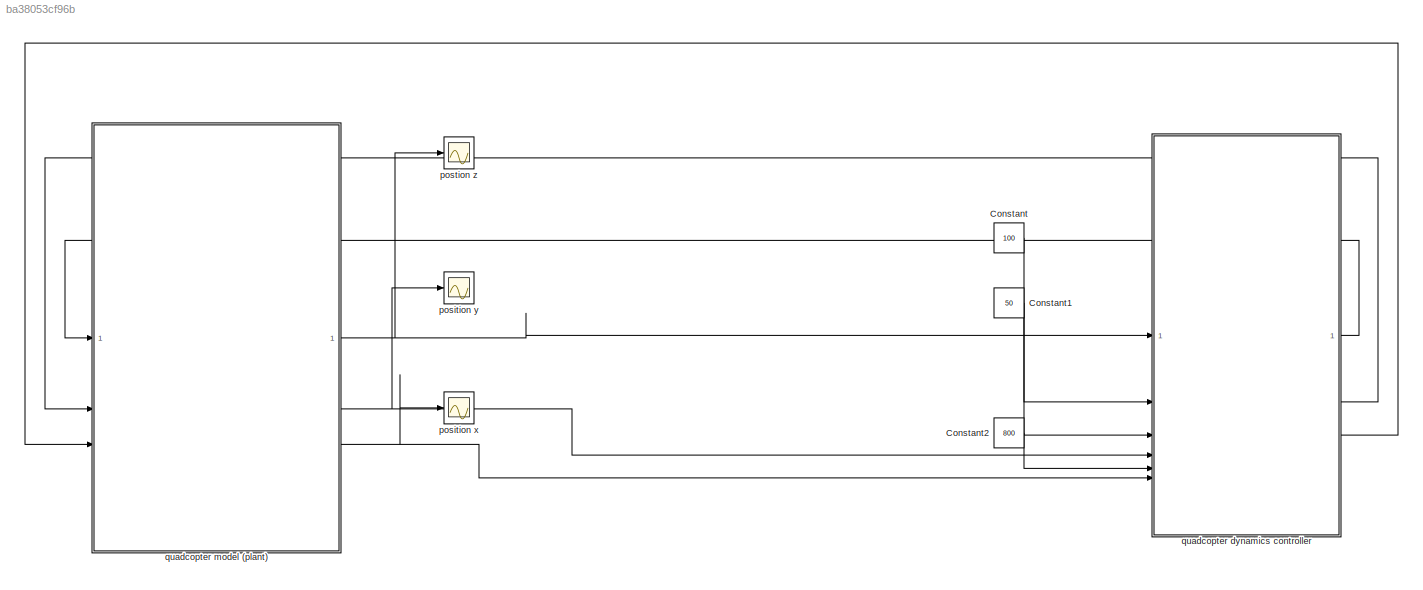
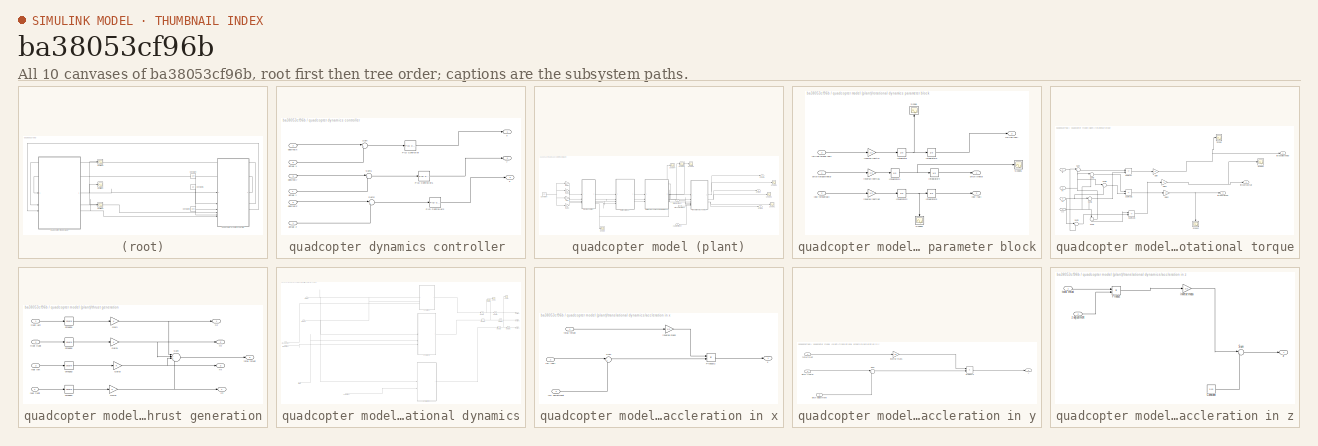
[diagram: thumbnail index - all 10 canvases of the model, root first then tree order]
MODEL slx_ba38053cf96b
KIND model
CONFIG AbsTol = auto
CONFIG EnableMultiTasking = off
CONFIG FixedStep = auto
CONFIG MaxStep = 0.2
CONFIG MinStep = auto
CONFIG RelTol = 1e-3
CONFIG SampleTimeConstraint = Unconstrained
CONFIG SolverName = odeN
CONFIG StartTime = 0.0
CONFIG StopTime = 20
BLOCK [Constant] Constant
  Value = 100
BLOCK [Constant] Constant1
  Value = 50
BLOCK [Constant] Constant2
  Value = 800
BLOCK [Scope] position x
  Floating = off
  NumInputPorts = 1
  ScopeSpecificationString = Simulink.scopes.TimeScopeBlockCfg('CurrentConfiguration', extmgr.ConfigurationSet(extmgr.Configuration('Core','General UI',true),extmgr.Configuration('Core','Source UI',true),extmgr.Configuration('Sources','WiredSimulink',true,'DataLoggingVariableName','ScopeData2'),extmgr.Configuration('Visuals','Time Domain',true,'SerializedDisplays',{struct('MinYLimReal','-14.24882','MaxYLimReal','128.23939','Y...<+1395ch>
BLOCK [Scope] position y
  Floating = off
  NumInputPorts = 1
  ScopeSpecificationString = Simulink.scopes.TimeScopeBlockCfg('CurrentConfiguration', extmgr.ConfigurationSet(extmgr.Configuration('Core','General UI',true),extmgr.Configuration('Core','Source UI',true),extmgr.Configuration('Sources','WiredSimulink',true,'DataLoggingVariableName','ScopeData1'),extmgr.Configuration('Visuals','Time Domain',true,'SerializedDisplays',{struct('MinYLimReal','-7.12441','MaxYLimReal','64.11969','YLa...<+1389ch>
BLOCK [Scope] postion z
  Floating = off
  NumInputPorts = 1
  ScopeSpecificationString = Simulink.scopes.TimeScopeBlockCfg('CurrentConfiguration', extmgr.ConfigurationSet(extmgr.Configuration('Core','General UI',true),extmgr.Configuration('Core','Source UI',true),extmgr.Configuration('Sources','WiredSimulink',true,'DataLoggingVariableName','ScopeData3'),extmgr.Configuration('Visuals','Time Domain',true,'SerializedDisplays',{struct('MinYLimReal','-110.8783','MaxYLimReal','997.9047','YL...<+1393ch>
BLOCK [SubSystem] quadcopter dynamics controller 
BLOCK [Reference] quadcopter dynamics controller /PID Controller  REF=slpidlib/PID Controller
  LibrarySourceBlock = simulink/Continuous/PID Controller
  SourceBlock = slpidlib/PID Controller
  SourceType = PID 1dof
BLOCK [Reference] quadcopter dynamics controller /PID Controller1  REF=slpidlib/PID Controller
  LibrarySourceBlock = simulink/Continuous/PID Controller
  SourceBlock = slpidlib/PID Controller
  SourceType = PID 1dof
BLOCK [Reference] quadcopter dynamics controller /PID Controller2  REF=slpidlib/PID Controller
  LibrarySourceBlock = simulink/Continuous/PID Controller
  SourceBlock = slpidlib/PID Controller
  SourceType = PID 1dof
BLOCK [Sum] quadcopter dynamics controller /Sum
  Inputs = |+-
BLOCK [Sum] quadcopter dynamics controller /Sum1
  Inputs = |+-
BLOCK [Sum] quadcopter dynamics controller /Sum2
  Inputs = |+-
BLOCK [Inport] quadcopter dynamics controller /actual x
  Port = 6
BLOCK [Inport] quadcopter dynamics controller /actual y
  Port = 4
BLOCK [Inport] quadcopter dynamics controller /actual z
BLOCK [Inport] quadcopter dynamics controller /desired x
  Port = 2
BLOCK [Inport] quadcopter dynamics controller /desired y
  Port = 3
BLOCK [Inport] quadcopter dynamics controller /desired z
  Port = 5
BLOCK [Outport] quadcopter dynamics controller /x
BLOCK [Outport] quadcopter dynamics controller /y
  Port = 2
BLOCK [Outport] quadcopter dynamics controller /z
  Port = 3
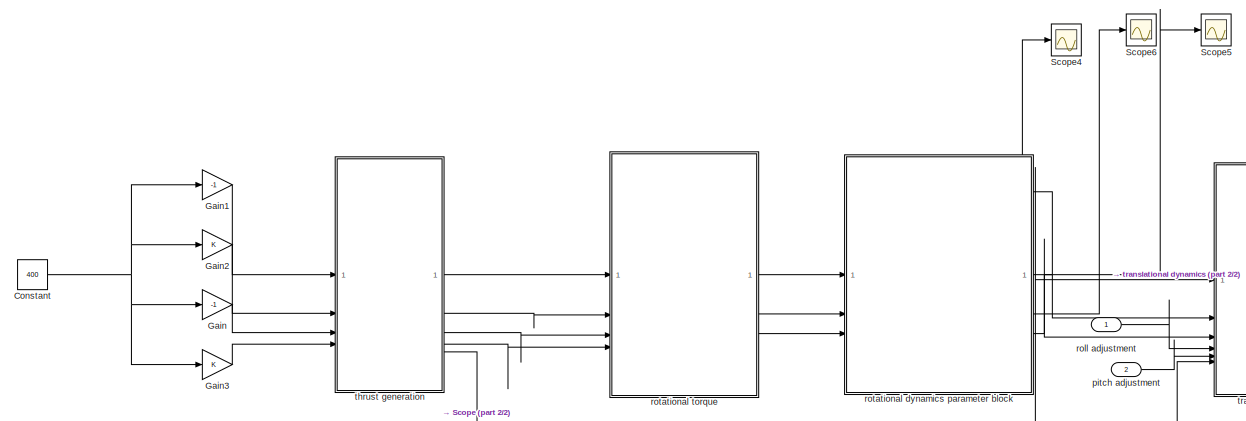
[diagram: quadcopter model (plant) - part 1/2, middle left region]
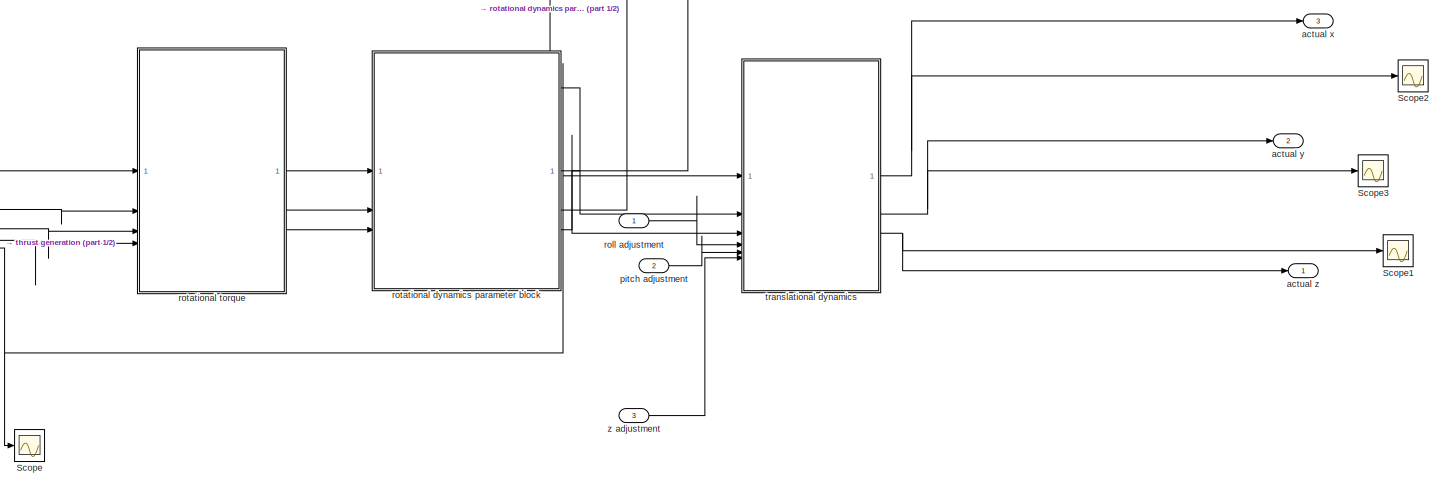
[diagram: quadcopter model (plant) - part 2/2, most of the canvas]
BLOCK [SubSystem] quadcopter model (plant)
BLOCK [Constant] quadcopter model (plant)/Constant
  Value = 400
BLOCK [Gain] quadcopter model (plant)/Gain
  Gain = -1
BLOCK [Gain] quadcopter model (plant)/Gain1
  Gain = -1
BLOCK [Gain] quadcopter model (plant)/Gain2
BLOCK [Gain] quadcopter model (plant)/Gain3
BLOCK [Scope] quadcopter model (plant)/Scope
  Floating = off
  NumInputPorts = 1
  ScopeSpecificationString = Simulink.scopes.TimeScopeBlockCfg('CurrentConfiguration', extmgr.ConfigurationSet(extmgr.Configuration('Core','General UI',true),extmgr.Configuration('Core','Source UI',true),extmgr.Configuration('Sources','WiredSimulink',true,'DataLoggingVariableName','ScopeData7'),extmgr.Configuration('Visuals','Time Domain',true),extmgr.Configuration('Tools','Plot Navigation',true),extmgr.Configuration('Tools',...<+40ch>
BLOCK [Scope] quadcopter model (plant)/Scope1
  Floating = off
  NumInputPorts = 1
  ScopeSpecificationString = Simulink.scopes.TimeScopeBlockCfg('CurrentConfiguration', extmgr.ConfigurationSet(extmgr.Configuration('Core','General UI',true),extmgr.Configuration('Core','Source UI',true),extmgr.Configuration('Sources','WiredSimulink',true,'DataLoggingVariableName','ScopeData1'),extmgr.Configuration('Visuals','Time Domain',true,'SerializedDisplays',{struct('MinYLimReal','-110.8783','MaxYLimReal','997.9047','YL...<+1410ch>
BLOCK [Scope] quadcopter model (plant)/Scope2
  Floating = off
  NumInputPorts = 1
  ScopeSpecificationString = Simulink.scopes.TimeScopeBlockCfg('CurrentConfiguration', extmgr.ConfigurationSet(extmgr.Configuration('Core','General UI',true),extmgr.Configuration('Core','Source UI',true),extmgr.Configuration('Sources','WiredSimulink',true,'DataLoggingVariableName','ScopeData2'),extmgr.Configuration('Visuals','Time Domain',true,'SerializedDisplays',{struct('MinYLimReal','-14.24882','MaxYLimReal','128.23939','Y...<+1393ch>
BLOCK [Scope] quadcopter model (plant)/Scope3
  Floating = off
  NumInputPorts = 1
  ScopeSpecificationString = Simulink.scopes.TimeScopeBlockCfg('CurrentConfiguration', extmgr.ConfigurationSet(extmgr.Configuration('Core','General UI',true,'DisplayFullSourceName',true),extmgr.Configuration('Core','Source UI',true),extmgr.Configuration('Sources','WiredSimulink',true,'DataLoggingVariableName','ScopeData3'),extmgr.Configuration('Visuals','Time Domain',true,'SerializedDisplays',{struct('MinYLimReal','-7.12441',...<+1416ch>
BLOCK [Scope] quadcopter model (plant)/Scope4
  Floating = off
  NumInputPorts = 1
  ScopeSpecificationString = Simulink.scopes.TimeScopeBlockCfg('CurrentConfiguration', extmgr.ConfigurationSet(extmgr.Configuration('Core','General UI',true),extmgr.Configuration('Core','Source UI',true),extmgr.Configuration('Sources','WiredSimulink',true,'DataLoggingVariableName','ScopeData4'),extmgr.Configuration('Visuals','Time Domain',true,'SerializedDisplays',{struct('MinYLimReal','-1.00000','MaxYLimReal','1.00000','YLab...<+1429ch>
BLOCK [Scope] quadcopter model (plant)/Scope5
  Floating = off
  NumInputPorts = 1
  ScopeSpecificationString = Simulink.scopes.TimeScopeBlockCfg('CurrentConfiguration', extmgr.ConfigurationSet(extmgr.Configuration('Core','General UI',true),extmgr.Configuration('Core','Source UI',true),extmgr.Configuration('Sources','WiredSimulink',true,'DataLoggingVariableName','ScopeData5'),extmgr.Configuration('Visuals','Time Domain',true,'SerializedDisplays',{struct('MinYLimReal','-1.00000','MaxYLimReal','1.00000','YLab...<+1396ch>
BLOCK [Scope] quadcopter model (plant)/Scope6
  Floating = off
  NumInputPorts = 1
  ScopeSpecificationString = Simulink.scopes.TimeScopeBlockCfg('CurrentConfiguration', extmgr.ConfigurationSet(extmgr.Configuration('Core','General UI',true),extmgr.Configuration('Core','Source UI',true),extmgr.Configuration('Sources','WiredSimulink',true,'DataLoggingVariableName','ScopeData6'),extmgr.Configuration('Visuals','Time Domain',true,'SerializedDisplays',{struct('MinYLimReal','-0.0000000000000006','MaxYLimReal','0.0...<+1499ch>
BLOCK [Outport] quadcopter model (plant)/actual x
  Port = 3
BLOCK [Outport] quadcopter model (plant)/actual y
  Port = 2
BLOCK [Outport] quadcopter model (plant)/actual z
BLOCK [Inport] quadcopter model (plant)/pitch adjustment 
  Port = 2
BLOCK [Inport] quadcopter model (plant)/roll adjustment
BLOCK [SubSystem] quadcopter model (plant)/rotational dynamics parameter block
BLOCK [Integrator] quadcopter model (plant)/rotational dynamics parameter block/Integrator
BLOCK [Integrator] quadcopter model (plant)/rotational dynamics parameter block/Integrator1
  IgnoreLimit = on
  LimitOutput = on
  LowerSaturationLimit = -750
  UpperSaturationLimit = 750
BLOCK [Integrator] quadcopter model (plant)/rotational dynamics parameter block/Integrator2
BLOCK [Integrator] quadcopter model (plant)/rotational dynamics parameter block/Integrator3
BLOCK [Integrator] quadcopter model (plant)/rotational dynamics parameter block/Integrator4
BLOCK [Integrator] quadcopter model (plant)/rotational dynamics parameter block/Integrator5
BLOCK [Scope] quadcopter model (plant)/rotational dynamics parameter block/Scope
  Floating = off
  NameLocation = right
  NumInputPorts = 1
  ScopeSpecificationString = Simulink.scopes.TimeScopeBlockCfg('CurrentConfiguration', extmgr.ConfigurationSet(extmgr.Configuration('Core','General UI',true),extmgr.Configuration('Core','Source UI',true),extmgr.Configuration('Sources','WiredSimulink',true,'DataLoggingVariableName','ScopeData1'),extmgr.Configuration('Visuals','Time Domain',true,'SerializedDisplays',{struct('MinYLimReal','-1.00000','MaxYLimReal','1.00000','YLab...<+1369ch>
BLOCK [Scope] quadcopter model (plant)/rotational dynamics parameter block/Scope1
  Floating = off
  NumInputPorts = 1
  ScopeSpecificationString = Simulink.scopes.TimeScopeBlockCfg('CurrentConfiguration', extmgr.ConfigurationSet(extmgr.Configuration('Core','General UI',true),extmgr.Configuration('Core','Source UI',true),extmgr.Configuration('Sources','WiredSimulink',true,'DataLoggingVariableName','ScopeData2'),extmgr.Configuration('Visuals','Time Domain',true,'SerializedDisplays',{struct('MinYLimReal','-1.00000','MaxYLimReal','1.00000','YLab...<+1370ch>
BLOCK [Scope] quadcopter model (plant)/rotational dynamics parameter block/Scope2
  Floating = off
  NameLocation = left
  NumInputPorts = 1
  ScopeSpecificationString = Simulink.scopes.TimeScopeBlockCfg('CurrentConfiguration', extmgr.ConfigurationSet(extmgr.Configuration('Core','General UI',true),extmgr.Configuration('Core','Source UI',true),extmgr.Configuration('Sources','WiredSimulink',true,'DataLoggingVariableName','ScopeData3'),extmgr.Configuration('Visuals','Time Domain',true),extmgr.Configuration('Tools','Plot Navigation',true),extmgr.Configuration('Tools',...<+40ch>
BLOCK [Gain] quadcopter model (plant)/rotational dynamics parameter block/inverse inertia
  Gain = 1/2
BLOCK [Gain] quadcopter model (plant)/rotational dynamics parameter block/inverse inertia1
  Gain = 1/2
BLOCK [Gain] quadcopter model (plant)/rotational dynamics parameter block/inverse inertia2
  Gain = 1/2
BLOCK [Outport] quadcopter model (plant)/rotational dynamics parameter block/pitch (theta)
BLOCK [Inport] quadcopter model (plant)/rotational dynamics parameter block/pitch torque(theta)
BLOCK [Outport] quadcopter model (plant)/rotational dynamics parameter block/rolling  (phi)
  Port = 3
BLOCK [Inport] quadcopter model (plant)/rotational dynamics parameter block/rolling torque (phi)
  Port = 3
BLOCK [Outport] quadcopter model (plant)/rotational dynamics parameter block/yaw (sai)
  Port = 2
BLOCK [Inport] quadcopter model (plant)/rotational dynamics parameter block/yaw torque(sai)
  Port = 2
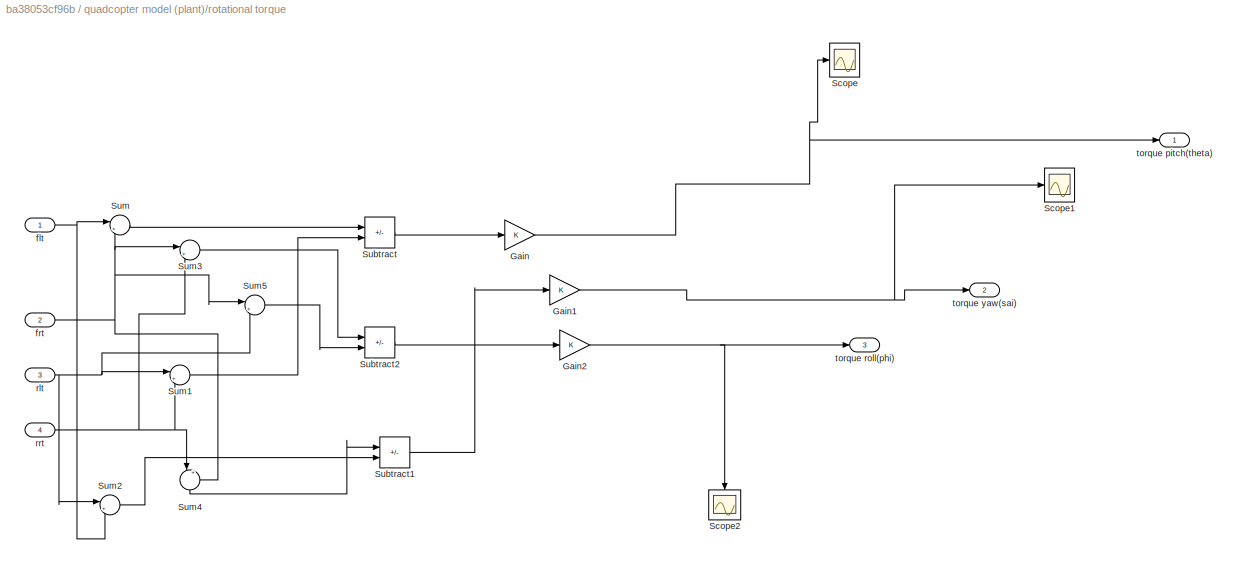
BLOCK [SubSystem] quadcopter model (plant)/rotational torque
BLOCK [Gain] quadcopter model (plant)/rotational torque/Gain
BLOCK [Gain] quadcopter model (plant)/rotational torque/Gain1
BLOCK [Gain] quadcopter model (plant)/rotational torque/Gain2
BLOCK [Scope] quadcopter model (plant)/rotational torque/Scope
  Floating = off
  NumInputPorts = 1
  ScopeSpecificationString = Simulink.scopes.TimeScopeBlockCfg('CurrentConfiguration', extmgr.ConfigurationSet(extmgr.Configuration('Core','General UI',true),extmgr.Configuration('Core','Source UI',true),extmgr.Configuration('Sources','WiredSimulink',true,'DataLoggingVariableName','ScopeData1'),extmgr.Configuration('Visuals','Time Domain',true,'SerializedDisplays',{struct('MinYLimReal','38000000.00000','MaxYLimReal','58000000...<+1452ch>
BLOCK [Scope] quadcopter model (plant)/rotational torque/Scope1
  Floating = off
  NumInputPorts = 1
  ScopeSpecificationString = Simulink.scopes.TimeScopeBlockCfg('CurrentConfiguration', extmgr.ConfigurationSet(extmgr.Configuration('Core','General UI',true),extmgr.Configuration('Core','Source UI',true),extmgr.Configuration('Sources','WiredSimulink',true,'DataLoggingVariableName','ScopeData2'),extmgr.Configuration('Visuals','Time Domain',true,'SerializedDisplays',{struct('MinYLimReal','364000000.00000','MaxYLimReal','5640000...<+1497ch>
BLOCK [Scope] quadcopter model (plant)/rotational torque/Scope2
  Floating = off
  NameLocation = left
  NumInputPorts = 1
  ScopeSpecificationString = Simulink.scopes.TimeScopeBlockCfg('CurrentConfiguration', extmgr.ConfigurationSet(extmgr.Configuration('Core','General UI',true),extmgr.Configuration('Core','Source UI',true),extmgr.Configuration('Sources','WiredSimulink',true,'DataLoggingVariableName','ScopeData3'),extmgr.Configuration('Visuals','Time Domain',true,'SerializedDisplays',{struct('MinYLimReal','540000000.00000','MaxYLimReal','7400000...<+1461ch>
BLOCK [Sum] quadcopter model (plant)/rotational torque/Subtract
  IconShape = rectangular
  Inputs = +-
BLOCK [Sum] quadcopter model (plant)/rotational torque/Subtract1
  IconShape = rectangular
  Inputs = +-
BLOCK [Sum] quadcopter model (plant)/rotational torque/Subtract2
  IconShape = rectangular
  Inputs = +-
BLOCK [Sum] quadcopter model (plant)/rotational torque/Sum
  Inputs = |++
BLOCK [Sum] quadcopter model (plant)/rotational torque/Sum1
  Inputs = |++
BLOCK [Sum] quadcopter model (plant)/rotational torque/Sum2
  Inputs = |++
BLOCK [Sum] quadcopter model (plant)/rotational torque/Sum3
  Inputs = |++
BLOCK [Sum] quadcopter model (plant)/rotational torque/Sum4
  Inputs = |++
  NameLocation = left
BLOCK [Sum] quadcopter model (plant)/rotational torque/Sum5
  Inputs = |++
BLOCK [Inport] quadcopter model (plant)/rotational torque/flt
BLOCK [Inport] quadcopter model (plant)/rotational torque/frt
  Port = 2
BLOCK [Inport] quadcopter model (plant)/rotational torque/rlt
  Port = 3
BLOCK [Inport] quadcopter model (plant)/rotational torque/rrt
  Port = 4
BLOCK [Outport] quadcopter model (plant)/rotational torque/torque pitch(theta)
BLOCK [Outport] quadcopter model (plant)/rotational torque/torque roll(phi)
  Port = 3
BLOCK [Outport] quadcopter model (plant)/rotational torque/torque yaw(sai)
  Port = 2
BLOCK [SubSystem] quadcopter model (plant)/thrust generation
BLOCK [Gain] quadcopter model (plant)/thrust generation/Gain
BLOCK [Gain] quadcopter model (plant)/thrust generation/Gain1
BLOCK [Gain] quadcopter model (plant)/thrust generation/Gain2
BLOCK [Gain] quadcopter model (plant)/thrust generation/Gain3
BLOCK [Sum] quadcopter model (plant)/thrust generation/Sum
  Inputs = |++++
BLOCK [Outport] quadcopter model (plant)/thrust generation/flt
BLOCK [Inport] quadcopter model (plant)/thrust generation/front left
BLOCK [Inport] quadcopter model (plant)/thrust generation/front right
  Port = 2
BLOCK [Outport] quadcopter model (plant)/thrust generation/frt
  Port = 2
BLOCK [Math] quadcopter model (plant)/thrust generation/omega1
  Operator = square
  OutputSignalType = real
BLOCK [Math] quadcopter model (plant)/thrust generation/omega2
  Operator = square
BLOCK [Math] quadcopter model (plant)/thrust generation/omega3
  Operator = square
BLOCK [Math] quadcopter model (plant)/thrust generation/omega4
  Operator = square
BLOCK [Inport] quadcopter model (plant)/thrust generation/rear left
  Port = 3
BLOCK [Inport] quadcopter model (plant)/thrust generation/rear right
  Port = 4
BLOCK [Outport] quadcopter model (plant)/thrust generation/rlt
  Port = 3
BLOCK [Outport] quadcopter model (plant)/thrust generation/rrt
  Port = 4
BLOCK [Outport] quadcopter model (plant)/thrust generation/total thrust 
  Port = 5
BLOCK [SubSystem] quadcopter model (plant)/translational dynamics
BLOCK [Integrator] quadcopter model (plant)/translational dynamics/Integrator
BLOCK [Integrator] quadcopter model (plant)/translational dynamics/Integrator1
BLOCK [Integrator] quadcopter model (plant)/translational dynamics/Integrator2
BLOCK [Integrator] quadcopter model (plant)/translational dynamics/Integrator3
BLOCK [Integrator] quadcopter model (plant)/translational dynamics/Integrator4
BLOCK [Integrator] quadcopter model (plant)/translational dynamics/Integrator5
BLOCK [Scope] quadcopter model (plant)/translational dynamics/Scope
  Floating = off
  NumInputPorts = 1
  ScopeSpecificationString = Simulink.scopes.TimeScopeBlockCfg('CurrentConfiguration', extmgr.ConfigurationSet(extmgr.Configuration('Core','General UI',true),extmgr.Configuration('Core','Source UI',true),extmgr.Configuration('Sources','WiredSimulink',true,'DataLoggingVariableName','ScopeData7'),extmgr.Configuration('Visuals','Time Domain',true,'SerializedDisplays',{struct('MinYLimReal','-6.30151','MaxYLimReal','47.53174','YLa...<+1373ch>
BLOCK [Scope] quadcopter model (plant)/translational dynamics/Scope1
  Floating = off
  NumInputPorts = 1
  ScopeSpecificationString = Simulink.scopes.TimeScopeBlockCfg('CurrentConfiguration', extmgr.ConfigurationSet(extmgr.Configuration('Core','General UI',true),extmgr.Configuration('Core','Source UI',true),extmgr.Configuration('Sources','WiredSimulink',true,'DataLoggingVariableName','ScopeData8'),extmgr.Configuration('Visuals','Time Domain',true,'SerializedDisplays',{struct('MinYLimReal','-104.29852','MaxYLimReal','756.94209','...<+1384ch>
BLOCK [Scope] quadcopter model (plant)/translational dynamics/Scope2
  Floating = off
  NumInputPorts = 1
  ScopeSpecificationString = Simulink.scopes.TimeScopeBlockCfg('CurrentConfiguration', extmgr.ConfigurationSet(extmgr.Configuration('Core','General UI',true),extmgr.Configuration('Core','Source UI',true),extmgr.Configuration('Sources','WiredSimulink',true,'DataLoggingVariableName','ScopeData9'),extmgr.Configuration('Visuals','Time Domain',true,'SerializedDisplays',{struct('MinYLimReal','-12.60302','MaxYLimReal','95.06347','YL...<+1376ch>
BLOCK [SubSystem] quadcopter model (plant)/translational dynamics/accleration in x
BLOCK [Product] quadcopter model (plant)/translational dynamics/accleration in x/Product2
BLOCK [Sum] quadcopter model (plant)/translational dynamics/accleration in x/Sum
  Inputs = |++
BLOCK [Gain] quadcopter model (plant)/translational dynamics/accleration in x/inverse mass
  Gain = 1/2
BLOCK [Inport] quadcopter model (plant)/translational dynamics/accleration in x/roll (phi)
  Port = 2
BLOCK [Inport] quadcopter model (plant)/translational dynamics/accleration in x/roll adjustment
  Port = 3
BLOCK [Inport] quadcopter model (plant)/translational dynamics/accleration in x/total thrust
BLOCK [Outport] quadcopter model (plant)/translational dynamics/accleration in x/x
BLOCK [SubSystem] quadcopter model (plant)/translational dynamics/accleration in y
BLOCK [Product] quadcopter model (plant)/translational dynamics/accleration in y/Product2
BLOCK [Sum] quadcopter model (plant)/translational dynamics/accleration in y/Sum
  Inputs = |+-
BLOCK [Gain] quadcopter model (plant)/translational dynamics/accleration in y/inverse mass
  Gain = 1/2
BLOCK [Inport] quadcopter model (plant)/translational dynamics/accleration in y/pitch (theta) 
  Port = 2
BLOCK [Inport] quadcopter model (plant)/translational dynamics/accleration in y/pitch adjustment
  Port = 3
BLOCK [Inport] quadcopter model (plant)/translational dynamics/accleration in y/total thrust
BLOCK [Outport] quadcopter model (plant)/translational dynamics/accleration in y/y
BLOCK [SubSystem] quadcopter model (plant)/translational dynamics/accleration in z
BLOCK [Constant] quadcopter model (plant)/translational dynamics/accleration in z/Constant
  Value = 9.81
BLOCK [Product] quadcopter model (plant)/translational dynamics/accleration in z/Product
BLOCK [Sum] quadcopter model (plant)/translational dynamics/accleration in z/Sum
  Inputs = |+-
BLOCK [Gain] quadcopter model (plant)/translational dynamics/accleration in z/inverse mass
  Gain = 1/2
BLOCK [Inport] quadcopter model (plant)/translational dynamics/accleration in z/total thrust
BLOCK [Outport] quadcopter model (plant)/translational dynamics/accleration in z/z
BLOCK [Inport] quadcopter model (plant)/translational dynamics/accleration in z/z adjustment
  Port = 2
BLOCK [Inport] quadcopter model (plant)/translational dynamics/pitch (theta) 
  Port = 2
BLOCK [Inport] quadcopter model (plant)/translational dynamics/pitch adjustment
  Port = 5
BLOCK [Outport] quadcopter model (plant)/translational dynamics/position x
BLOCK [Outport] quadcopter model (plant)/translational dynamics/position y
  Port = 2
BLOCK [Outport] quadcopter model (plant)/translational dynamics/position z
  Port = 3
BLOCK [Inport] quadcopter model (plant)/translational dynamics/roll (phi)
  Port = 3
BLOCK [Inport] quadcopter model (plant)/translational dynamics/roll adjustment
  Port = 4
BLOCK [Inport] quadcopter model (plant)/translational dynamics/total thrust
BLOCK [Inport] quadcopter model (plant)/translational dynamics/z adjustment
  Port = 6
BLOCK [Inport] quadcopter model (plant)/z adjustment
  Port = 3
LINE Constant1:1 -> quadcopter dynamics controller :3
LINE Constant2:1 -> quadcopter dynamics controller :5
LINE Constant:1 -> quadcopter dynamics controller :2
LINE quadcopter dynamics controller /PID Controller1:1 -> quadcopter dynamics controller /y:1
LINE quadcopter dynamics controller /PID Controller2:1 -> quadcopter dynamics controller /z:1
LINE quadcopter dynamics controller /PID Controller:1 -> quadcopter dynamics controller /x:1
LINE quadcopter dynamics controller /Sum1:1 -> quadcopter dynamics controller /PID Controller1:1
LINE quadcopter dynamics controller /Sum2:1 -> quadcopter dynamics controller /PID Controller2:1
LINE quadcopter dynamics controller /Sum:1 -> quadcopter dynamics controller /PID Controller:1
LINE quadcopter dynamics controller /actual x:1 -> quadcopter dynamics controller /Sum:2
LINE quadcopter dynamics controller /actual y:1 -> quadcopter dynamics controller /Sum1:2
LINE quadcopter dynamics controller /actual z:1 -> quadcopter dynamics controller /Sum2:2
LINE quadcopter dynamics controller /desired x:1 -> quadcopter dynamics controller /Sum:1
LINE quadcopter dynamics controller /desired y:1 -> quadcopter dynamics controller /Sum1:1
LINE quadcopter dynamics controller /desired z:1 -> quadcopter dynamics controller /Sum2:1
LINE quadcopter dynamics controller :1 -> quadcopter model (plant):1
LINE quadcopter dynamics controller :2 -> quadcopter model (plant):2
LINE quadcopter dynamics controller :3 -> quadcopter model (plant):3
NET quadcopter model (plant)/Constant:1 -> quadcopter model (plant)/Gain1:1, quadcopter model (plant)/Gain2:1, quadcopter model (plant)/Gain3:1, quadcopter model (plant)/Gain:1
LINE quadcopter model (plant)/Gain1:1 -> quadcopter model (plant)/thrust generation:1
LINE quadcopter model (plant)/Gain2:1 -> quadcopter model (plant)/thrust generation:2
LINE quadcopter model (plant)/Gain3:1 -> quadcopter model (plant)/thrust generation:4
LINE quadcopter model (plant)/Gain:1 -> quadcopter model (plant)/thrust generation:3
LINE quadcopter model (plant)/pitch adjustment :1 -> quadcopter model (plant)/translational dynamics:5
LINE quadcopter model (plant)/roll adjustment:1 -> quadcopter model (plant)/translational dynamics:4
NET quadcopter model (plant)/rotational dynamics parameter block/Integrator1:1 -> quadcopter model (plant)/rotational dynamics parameter block/Integrator4:1, quadcopter model (plant)/rotational dynamics parameter block/Scope1:1
NET quadcopter model (plant)/rotational dynamics parameter block/Integrator2:1 -> quadcopter model (plant)/rotational dynamics parameter block/Integrator5:1, quadcopter model (plant)/rotational dynamics parameter block/Scope2:1
LINE quadcopter model (plant)/rotational dynamics parameter block/Integrator3:1 -> quadcopter model (plant)/rotational dynamics parameter block/rolling  (phi):1
LINE quadcopter model (plant)/rotational dynamics parameter block/Integrator4:1 -> quadcopter model (plant)/rotational dynamics parameter block/pitch (theta):1
LINE quadcopter model (plant)/rotational dynamics parameter block/Integrator5:1 -> quadcopter model (plant)/rotational dynamics parameter block/yaw (sai):1
NET quadcopter model (plant)/rotational dynamics parameter block/Integrator:1 -> quadcopter model (plant)/rotational dynamics parameter block/Integrator3:1, quadcopter model (plant)/rotational dynamics parameter block/Scope:1
LINE quadcopter model (plant)/rotational dynamics parameter block/inverse inertia1:1 -> quadcopter model (plant)/rotational dynamics parameter block/Integrator1:1
LINE quadcopter model (plant)/rotational dynamics parameter block/inverse inertia2:1 -> quadcopter model (plant)/rotational dynamics parameter block/Integrator2:1
LINE quadcopter model (plant)/rotational dynamics parameter block/inverse inertia:1 -> quadcopter model (plant)/rotational dynamics parameter block/Integrator:1
LINE quadcopter model (plant)/rotational dynamics parameter block/pitch torque(theta):1 -> quadcopter model (plant)/rotational dynamics parameter block/inverse inertia1:1
LINE quadcopter model (plant)/rotational dynamics parameter block/rolling torque (phi):1 -> quadcopter model (plant)/rotational dynamics parameter block/inverse inertia:1
LINE quadcopter model (plant)/rotational dynamics parameter block/yaw torque(sai):1 -> quadcopter model (plant)/rotational dynamics parameter block/inverse inertia2:1
NET quadcopter model (plant)/rotational dynamics parameter block:1 -> quadcopter model (plant)/Scope4:1, quadcopter model (plant)/translational dynamics:2
LINE quadcopter model (plant)/rotational dynamics parameter block:2 -> quadcopter model (plant)/Scope6:1
NET quadcopter model (plant)/rotational dynamics parameter block:3 -> quadcopter model (plant)/Scope5:1, quadcopter model (plant)/translational dynamics:3
NET quadcopter model (plant)/rotational torque/Gain1:1 -> quadcopter model (plant)/rotational torque/Scope1:1, quadcopter model (plant)/rotational torque/torque yaw(sai):1
NET quadcopter model (plant)/rotational torque/Gain2:1 -> quadcopter model (plant)/rotational torque/Scope2:1, quadcopter model (plant)/rotational torque/torque roll(phi):1
NET quadcopter model (plant)/rotational torque/Gain:1 -> quadcopter model (plant)/rotational torque/Scope:1, quadcopter model (plant)/rotational torque/torque pitch(theta):1
LINE quadcopter model (plant)/rotational torque/Subtract1:1 -> quadcopter model (plant)/rotational torque/Gain1:1
LINE quadcopter model (plant)/rotational torque/Subtract2:1 -> quadcopter model (plant)/rotational torque/Gain2:1
LINE quadcopter model (plant)/rotational torque/Subtract:1 -> quadcopter model (plant)/rotational torque/Gain:1
LINE quadcopter model (plant)/rotational torque/Sum1:1 -> quadcopter model (plant)/rotational torque/Subtract:2
LINE quadcopter model (plant)/rotational torque/Sum2:1 -> quadcopter model (plant)/rotational torque/Subtract1:2
LINE quadcopter model (plant)/rotational torque/Sum3:1 -> quadcopter model (plant)/rotational torque/Subtract2:1
LINE quadcopter model (plant)/rotational torque/Sum4:1 -> quadcopter model (plant)/rotational torque/Subtract1:1
LINE quadcopter model (plant)/rotational torque/Sum5:1 -> quadcopter model (plant)/rotational torque/Subtract2:2
LINE quadcopter model (plant)/rotational torque/Sum:1 -> quadcopter model (plant)/rotational torque/Subtract:1
NET quadcopter model (plant)/rotational torque/flt:1 -> quadcopter model (plant)/rotational torque/Sum2:2, quadcopter model (plant)/rotational torque/Sum:1
NET quadcopter model (plant)/rotational torque/frt:1 -> quadcopter model (plant)/rotational torque/Sum3:1, quadcopter model (plant)/rotational torque/Sum4:2, quadcopter model (plant)/rotational torque/Sum5:1, quadcopter model (plant)/rotational torque/Sum:2
NET quadcopter model (plant)/rotational torque/rlt:1 -> quadcopter model (plant)/rotational torque/Sum1:1, quadcopter model (plant)/rotational torque/Sum2:1, quadcopter model (plant)/rotational torque/Sum5:2
NET quadcopter model (plant)/rotational torque/rrt:1 -> quadcopter model (plant)/rotational torque/Sum1:2, quadcopter model (plant)/rotational torque/Sum3:2, quadcopter model (plant)/rotational torque/Sum4:1
LINE quadcopter model (plant)/rotational torque:1 -> quadcopter model (plant)/rotational dynamics parameter block:1
LINE quadcopter model (plant)/rotational torque:2 -> quadcopter model (plant)/rotational dynamics parameter block:2
LINE quadcopter model (plant)/rotational torque:3 -> quadcopter model (plant)/rotational dynamics parameter block:3
NET quadcopter model (plant)/thrust generation/Gain1:1 -> quadcopter model (plant)/thrust generation/Sum:2, quadcopter model (plant)/thrust generation/frt:1
NET quadcopter model (plant)/thrust generation/Gain2:1 -> quadcopter model (plant)/thrust generation/Sum:4, quadcopter model (plant)/thrust generation/rrt:1
NET quadcopter model (plant)/thrust generation/Gain3:1 -> quadcopter model (plant)/thrust generation/Sum:3, quadcopter model (plant)/thrust generation/rlt:1
NET quadcopter model (plant)/thrust generation/Gain:1 -> quadcopter model (plant)/thrust generation/Sum:1, quadcopter model (plant)/thrust generation/flt:1
LINE quadcopter model (plant)/thrust generation/Sum:1 -> quadcopter model (plant)/thrust generation/total thrust :1
LINE quadcopter model (plant)/thrust generation/front left:1 -> quadcopter model (plant)/thrust generation/omega1:1
LINE quadcopter model (plant)/thrust generation/front right:1 -> quadcopter model (plant)/thrust generation/omega2:1
LINE quadcopter model (plant)/thrust generation/omega1:1 -> quadcopter model (plant)/thrust generation/Gain:1
LINE quadcopter model (plant)/thrust generation/omega2:1 -> quadcopter model (plant)/thrust generation/Gain1:1
LINE quadcopter model (plant)/thrust generation/omega3:1 -> quadcopter model (plant)/thrust generation/Gain3:1
LINE quadcopter model (plant)/thrust generation/omega4:1 -> quadcopter model (plant)/thrust generation/Gain2:1
LINE quadcopter model (plant)/thrust generation/rear left:1 -> quadcopter model (plant)/thrust generation/omega3:1
LINE quadcopter model (plant)/thrust generation/rear right:1 -> quadcopter model (plant)/thrust generation/omega4:1
LINE quadcopter model (plant)/thrust generation:1 -> quadcopter model (plant)/rotational torque:1
LINE quadcopter model (plant)/thrust generation:2 -> quadcopter model (plant)/rotational torque:2
LINE quadcopter model (plant)/thrust generation:3 -> quadcopter model (plant)/rotational torque:3
LINE quadcopter model (plant)/thrust generation:4 -> quadcopter model (plant)/rotational torque:4
NET quadcopter model (plant)/thrust generation:5 -> quadcopter model (plant)/Scope:1, quadcopter model (plant)/translational dynamics:1
NET quadcopter model (plant)/translational dynamics/Integrator1:1 -> quadcopter model (plant)/translational dynamics/Integrator4:1, quadcopter model (plant)/translational dynamics/Scope2:1
NET quadcopter model (plant)/translational dynamics/Integrator2:1 -> quadcopter model (plant)/translational dynamics/Integrator5:1, quadcopter model (plant)/translational dynamics/Scope1:1
LINE quadcopter model (plant)/translational dynamics/Integrator3:1 -> quadcopter model (plant)/translational dynamics/position y:1
LINE quadcopter model (plant)/translational dynamics/Integrator4:1 -> quadcopter model (plant)/translational dynamics/position x:1
LINE quadcopter model (plant)/translational dynamics/Integrator5:1 -> quadcopter model (plant)/translational dynamics/position z:1
NET quadcopter model (plant)/translational dynamics/Integrator:1 -> quadcopter model (plant)/translational dynamics/Integrator3:1, quadcopter model (plant)/translational dynamics/Scope:1
LINE quadcopter model (plant)/translational dynamics/accleration in x/Product2:1 -> quadcopter model (plant)/translational dynamics/accleration in x/x:1
LINE quadcopter model (plant)/translational dynamics/accleration in x/Sum:1 -> quadcopter model (plant)/translational dynamics/accleration in x/Product2:2
LINE quadcopter model (plant)/translational dynamics/accleration in x/inverse mass:1 -> quadcopter model (plant)/translational dynamics/accleration in x/Product2:1
LINE quadcopter model (plant)/translational dynamics/accleration in x/roll (phi):1 -> quadcopter model (plant)/translational dynamics/accleration in x/Sum:1
LINE quadcopter model (plant)/translational dynamics/accleration in x/roll adjustment:1 -> quadcopter model (plant)/translational dynamics/accleration in x/Sum:2
LINE quadcopter model (plant)/translational dynamics/accleration in x/total thrust:1 -> quadcopter model (plant)/translational dynamics/accleration in x/inverse mass:1
LINE quadcopter model (plant)/translational dynamics/accleration in x:1 -> quadcopter model (plant)/translational dynamics/Integrator1:1
LINE quadcopter model (plant)/translational dynamics/accleration in y/Product2:1 -> quadcopter model (plant)/translational dynamics/accleration in y/y:1
LINE quadcopter model (plant)/translational dynamics/accleration in y/Sum:1 -> quadcopter model (plant)/translational dynamics/accleration in y/Product2:2
LINE quadcopter model (plant)/translational dynamics/accleration in y/inverse mass:1 -> quadcopter model (plant)/translational dynamics/accleration in y/Product2:1
LINE quadcopter model (plant)/translational dynamics/accleration in y/pitch (theta) :1 -> quadcopter model (plant)/translational dynamics/accleration in y/Sum:1
LINE quadcopter model (plant)/translational dynamics/accleration in y/pitch adjustment:1 -> quadcopter model (plant)/translational dynamics/accleration in y/Sum:2
LINE quadcopter model (plant)/translational dynamics/accleration in y/total thrust:1 -> quadcopter model (plant)/translational dynamics/accleration in y/inverse mass:1
LINE quadcopter model (plant)/translational dynamics/accleration in y:1 -> quadcopter model (plant)/translational dynamics/Integrator:1
LINE quadcopter model (plant)/translational dynamics/accleration in z/Constant:1 -> quadcopter model (plant)/translational dynamics/accleration in z/Sum:2
LINE quadcopter model (plant)/translational dynamics/accleration in z/Product:1 -> quadcopter model (plant)/translational dynamics/accleration in z/inverse mass:1
LINE quadcopter model (plant)/translational dynamics/accleration in z/Sum:1 -> quadcopter model (plant)/translational dynamics/accleration in z/z:1
LINE quadcopter model (plant)/translational dynamics/accleration in z/inverse mass:1 -> quadcopter model (plant)/translational dynamics/accleration in z/Sum:1
LINE quadcopter model (plant)/translational dynamics/accleration in z/total thrust:1 -> quadcopter model (plant)/translational dynamics/accleration in z/Product:1
LINE quadcopter model (plant)/translational dynamics/accleration in z/z adjustment:1 -> quadcopter model (plant)/translational dynamics/accleration in z/Product:2
LINE quadcopter model (plant)/translational dynamics/accleration in z:1 -> quadcopter model (plant)/translational dynamics/Integrator2:1
LINE quadcopter model (plant)/translational dynamics/pitch (theta) :1 -> quadcopter model (plant)/translational dynamics/accleration in y:2
LINE quadcopter model (plant)/translational dynamics/pitch adjustment:1 -> quadcopter model (plant)/translational dynamics/accleration in y:3
LINE quadcopter model (plant)/translational dynamics/roll (phi):1 -> quadcopter model (plant)/translational dynamics/accleration in x:2
LINE quadcopter model (plant)/translational dynamics/roll adjustment:1 -> quadcopter model (plant)/translational dynamics/accleration in x:3
NET quadcopter model (plant)/translational dynamics/total thrust:1 -> quadcopter model (plant)/translational dynamics/accleration in x:1, quadcopter model (plant)/translational dynamics/accleration in y:1, quadcopter model (plant)/translational dynamics/accleration in z:1
LINE quadcopter model (plant)/translational dynamics/z adjustment:1 -> quadcopter model (plant)/translational dynamics/accleration in z:2
NET quadcopter model (plant)/translational dynamics:1 -> quadcopter model (plant)/Scope2:1, quadcopter model (plant)/actual x:1
NET quadcopter model (plant)/translational dynamics:2 -> quadcopter model (plant)/Scope3:1, quadcopter model (plant)/actual y:1
NET quadcopter model (plant)/translational dynamics:3 -> quadcopter model (plant)/Scope1:1, quadcopter model (plant)/actual z:1
LINE quadcopter model (plant)/z adjustment:1 -> quadcopter model (plant)/translational dynamics:6
NET quadcopter model (plant):1 -> postion z:1, quadcopter dynamics controller :1
NET quadcopter model (plant):2 -> position y:1, quadcopter dynamics controller :4
NET quadcopter model (plant):3 -> position x:1, quadcopter dynamics controller :6
note: NET lines group one-source signal fan-out (src -> all destinations, sorted); 1:1 wires keep LINE
